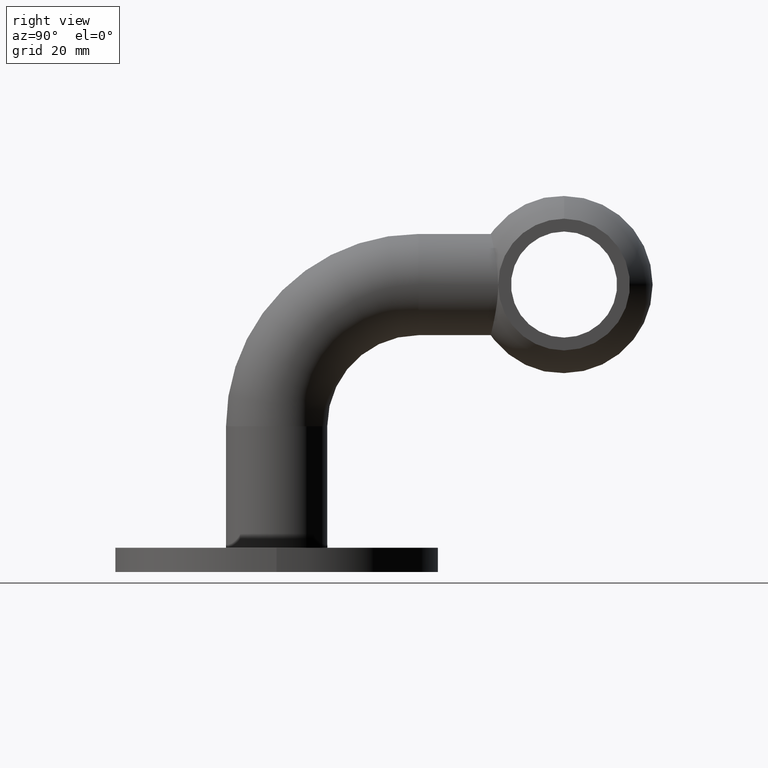
[diagram: clean part render]
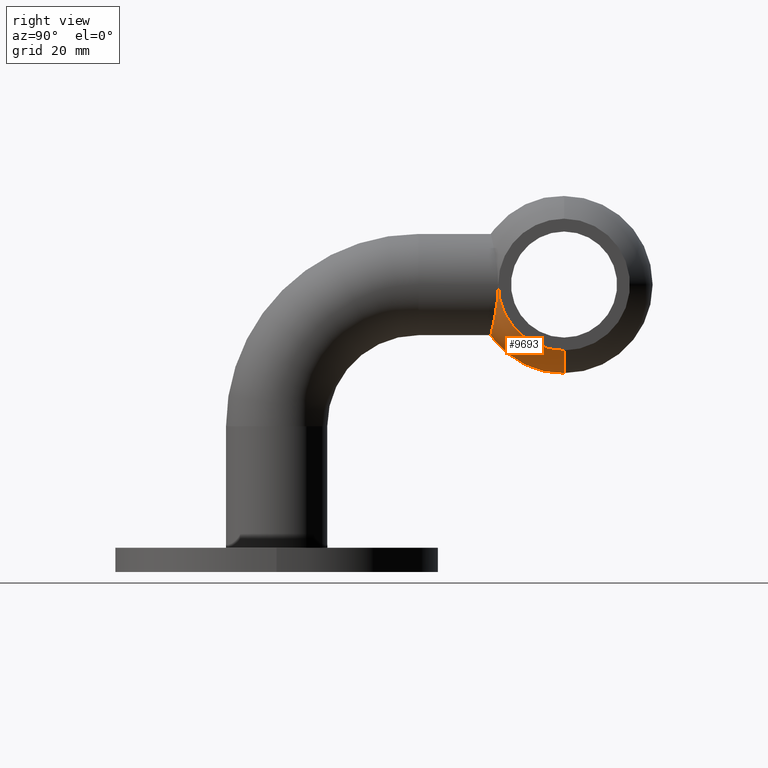
[diagram: same view with one face highlighted and labeled with its STEP entity id]
A machine part, right view. The second image highlights one B-rep face of the part: STEP entity #9693.
In plain terms, the highlighted toroidal blend (fillet) surface has major radius 5.5 mm and minor (blend) radius 16.5 mm.
Its self-contained STEP definition (entity closure, byte-faithful):
#232 = DIRECTION ( 'NONE',  ( 0.000000000000000000, 0.000000000000000000, 1.000000000000000000 ) ) ;
#277 = AXIS2_PLACEMENT_3D ( 'NONE', #3950, #3861, #232 ) ;
#471 = EDGE_CURVE ( 'NONE', #6858, #7572, #4157, .T. ) ;
#578 = CARTESIAN_POINT ( 'NONE',  ( 9.132306516827833676, 53.75282220600819727, 62.45503077041996676 ) ) ;
#773 = CARTESIAN_POINT ( 'NONE',  ( -6.272823850066046703, 53.27492715338297558, 60.18010263229639634 ) ) ;
#850 = CARTESIAN_POINT ( 'NONE',  ( -0.8198136089920443625, 52.90075422292627394, 58.52006521851529186 ) ) ;
#885 = CARTESIAN_POINT ( 'NONE',  ( -11.85799668050822397, 54.49063701149067640, 66.96220706592794158 ) ) ;
#929 = CARTESIAN_POINT ( 'NONE',  ( -5.175135113800343412, 53.14929389127991755, 59.61422849854959338 ) ) ;
#1066 = CARTESIAN_POINT ( 'NONE',  ( -2.562505938250228088E-11, 52.89613300976834154, 58.49999999999999289 ) ) ;
#1301 = CARTESIAN_POINT ( 'NONE',  ( 12.50000000000000000, 71.00000000000000000, 54.72967038573099785 ) ) ;
#1484 = CARTESIAN_POINT ( 'NONE',  ( 11.70086668536602481, 54.43966515298910025, 66.58321859969710488 ) ) ;
#1526 = CARTESIAN_POINT ( 'NONE',  ( 12.49999999999999822, 54.72967038573099785, 70.99999999999998579 ) ) ;
#1536 = VERTEX_POINT ( 'NONE', #7106 ) ;
#1636 = EDGE_CURVE ( 'NONE', #1536, #6858, #4975, .T. ) ;
#1818 = CARTESIAN_POINT ( 'NONE',  ( -2.562505938250228088E-11, 52.89613300976834154, 58.49999999999999289 ) ) ;
#2405 = CARTESIAN_POINT ( 'NONE',  ( 7.643191624765393932, 53.46934670307432214, 61.07521221868570649 ) ) ;
#2810 = CARTESIAN_POINT ( 'NONE',  ( -3.259799331690090618, 52.98892172844226423, 58.90467289242958060 ) ) ;
#2919 = DIRECTION ( 'NONE',  ( 0.000000000000000000, 0.000000000000000000, 1.000000000000000000 ) ) ;
#3384 = CARTESIAN_POINT ( 'NONE',  ( 2.853027337650234863, 52.97020487117517007, 58.82290740456883782 ) ) ;
#3456 = ORIENTED_EDGE ( 'NONE', *, *, #8928, .F. ) ;
#3468 = CARTESIAN_POINT ( 'NONE',  ( -12.49999999999999645, 54.72967038573099785, 70.99999999999998579 ) ) ;
#3652 = CARTESIAN_POINT ( 'NONE',  ( -12.49999999999999645, 71.00000000000000000, 54.72967038573099785 ) ) ;
#3861 = DIRECTION ( 'NONE',  ( -1.000000000000000000, -0.000000000000000000, -0.000000000000000000 ) ) ;
#3950 = CARTESIAN_POINT ( 'NONE',  ( 12.50000000000000000, 71.00000000000000000, 71.00000000000000000 ) ) ;
#4157 = B_SPLINE_CURVE_WITH_KNOTS ( 'NONE', 3,
 ( #10996, #8996, #9042, #3384, #5268, #11033, #6351, #6234, #7153, #10904, #5420, #2405, #4349, #578, #10039, #8112, #9912, #11933, #9999, #1484, #7193, #4301, #8954, #8078, #11806, #4393, #11977, #1526 ),
 .UNSPECIFIED., .F., .F.,
 ( 4, 2, 2, 2, 2, 2, 2, 2, 2, 2, 2, 2, 2, 4 ),
 ( 0.009902280643632964049, 0.01235852519796515336, 0.01358664747513124542, 0.01481476975229734094, 0.01604289202946343473, 0.01727101430662952852, 0.01972725886096171610, 0.02095538113812781683, 0.02218350341529391756, 0.02463974796962612249, 0.02586787024679221975, 0.02709599252395832741, 0.02832411480112442814, 0.02955223707829052887 ),
 .UNSPECIFIED. ) ;
#4194 = CARTESIAN_POINT ( 'NONE',  ( 0.000000000000000000, 71.00000000000000000, 71.00000000000000000 ) ) ;
#4301 = CARTESIAN_POINT ( 'NONE',  ( 12.07836274273245003, 54.57079314403573989, 67.75494346813994184 ) ) ;
#4349 = CARTESIAN_POINT ( 'NONE',  ( 8.269846387176160718, 53.57876506330701716, 61.59140145720031967 ) ) ;
#4393 = CARTESIAN_POINT ( 'NONE',  ( 12.47922104983943647, 54.72146868347901005, 70.17083671853319515 ) ) ;
#4444 = DIRECTION ( 'NONE',  ( 0.000000000000000000, 0.000000000000000000, 1.000000000000000000 ) ) ;
#4542 = CARTESIAN_POINT ( 'NONE',  ( -12.33801033815103843, 54.66693653104585593, 68.95235390157451150 ) ) ;
#4582 = CARTESIAN_POINT ( 'NONE',  ( -12.39930479514298867, 54.69051550591848354, 69.36405875897507656 ) ) ;
#4587 = TOROIDAL_SURFACE ( 'NONE', #6420, 5.499999999999991118, 16.49999999999999645 ) ;
#4775 = EDGE_CURVE ( 'NONE', #5874, #7572, #6532, .T. ) ;
#4975 = B_SPLINE_CURVE_WITH_KNOTS ( 'NONE', 3,
 ( #3468, #10991, #7265, #4582, #4542, #11197, #885, #5538, #7428, #9366, #5583, #12166, #11239, #12124, #12048, #8376, #773, #5664, #929, #6515, #2810, #11114, #5621, #850, #7468, #1818 ),
 .UNSPECIFIED., .F., .F.,
 ( 4, 2, 2, 2, 2, 2, 2, 2, 2, 2, 2, 2, 4 ),
 ( 0.06884475571312397013, 0.07007194714339678998, 0.07129913857366960983, 0.07375352143421527729, 0.07498071286448811101, 0.07620790429476094474, 0.07866228715530662607, 0.08111667001585227965, 0.08234386144612511338, 0.08357105287639793323, 0.08602543573694358681, 0.08725262716721640666, 0.08847981859748922651 ),
 .UNSPECIFIED. ) ;
#5268 = CARTESIAN_POINT ( 'NONE',  ( 3.254350300859888190, 52.99332333870499667, 58.92410495789010128 ) ) ;
#5420 = CARTESIAN_POINT ( 'NONE',  ( 6.623713723922134200, 53.32128470196217762, 60.39133070631485367 ) ) ;
#5434 = DIRECTION ( 'NONE',  ( -1.000000000000000000, -0.000000000000000000, -0.000000000000000000 ) ) ;
#5538 = CARTESIAN_POINT ( 'NONE',  ( -11.38881607484107050, 54.33848695400619278, 65.83169924667802775 ) ) ;
#5580 = ORIENTED_EDGE ( 'NONE', *, *, #1636, .F. ) ;
#5583 = CARTESIAN_POINT ( 'NONE',  ( -10.61600399440616371, 54.11110129428303139, 64.38824390141286358 ) ) ;
#5621 = CARTESIAN_POINT ( 'NONE',  ( -1.642513909929079974, 52.91947020872067498, 58.60149143810878059 ) ) ;
#5664 = CARTESIAN_POINT ( 'NONE',  ( -5.549449611817626860, 53.18900586991355794, 59.79187316687153952 ) ) ;
#5709 = CARTESIAN_POINT ( 'NONE',  ( -12.49999999999999645, 71.00000000000000000, 71.00000000000000000 ) ) ;
#5746 = DIRECTION ( 'NONE',  ( -1.000000000000000000, -0.000000000000000000, -0.000000000000000000 ) ) ;
#5761 = DIRECTION ( 'NONE',  ( -0.000000000000000000, 1.000000000000000000, 1.224646799147353207E-16 ) ) ;
#5874 = VERTEX_POINT ( 'NONE', #1301 ) ;
#6122 = VERTEX_POINT ( 'NONE', #3652 ) ;
#6234 = CARTESIAN_POINT ( 'NONE',  ( 5.176523293751863264, 53.14944729575198323, 59.61491603277579543 ) ) ;
#6351 = CARTESIAN_POINT ( 'NONE',  ( 4.422925868351437195, 53.07899008276994834, 59.30152757345776138 ) ) ;
#6363 = EDGE_LOOP ( 'NONE', ( #10093, #11825, #9054, #5580, #3456 ) ) ;
#6420 = AXIS2_PLACEMENT_3D ( 'NONE', #4194, #5434, #4444 ) ;
#6515 = CARTESIAN_POINT ( 'NONE',  ( -4.040265804369568947, 53.04326097742506363, 59.14261762666993150 ) ) ;
#6532 = CIRCLE ( 'NONE', #277, 16.27032961426899504 ) ;
#6692 = DIRECTION ( 'NONE',  ( 0.000000000000000000, 0.000000000000000000, 1.000000000000000000 ) ) ;
#6753 = CARTESIAN_POINT ( 'NONE',  ( 12.49999999999999822, 54.72967038573099785, 70.99999999999998579 ) ) ;
#6796 = CARTESIAN_POINT ( 'NONE',  ( 0.000000000000000000, 71.00000000000000000, 65.50000000000000000 ) ) ;
#6858 = VERTEX_POINT ( 'NONE', #1066 ) ;
#7106 = CARTESIAN_POINT ( 'NONE',  ( -12.49999999999999645, 54.72967038573099785, 70.99999999999998579 ) ) ;
#7153 = CARTESIAN_POINT ( 'NONE',  ( 5.545732223971645780, 53.18859801727796821, 59.79004328792095180 ) ) ;
#7193 = CARTESIAN_POINT ( 'NONE',  ( 11.84043235045426989, 54.48720737135788283, 66.97242005736561055 ) ) ;
#7265 = CARTESIAN_POINT ( 'NONE',  ( -12.48001002403662341, 54.72177780747093578, 70.18243474456929221 ) ) ;
#7428 = CARTESIAN_POINT ( 'NONE',  ( -11.21263325434209435, 54.28362993090607347, 65.45971802084318369 ) ) ;
#7468 = CARTESIAN_POINT ( 'NONE',  ( -0.4094347639409748330, 52.89613300976853338, 58.50000000000082423 ) ) ;
#7541 = CIRCLE ( 'NONE', #9302, 16.27032961426899504 ) ;
#7572 = VERTEX_POINT ( 'NONE', #6753 ) ;
#7670 = CIRCLE ( 'NONE', #9070, 16.50000000000000000 ) ;
#8078 = CARTESIAN_POINT ( 'NONE',  ( 12.33748221547064894, 54.66674122469106578, 68.94994612248621024 ) ) ;
#8112 = CARTESIAN_POINT ( 'NONE',  ( 9.927208003284118121, 53.93332075724253372, 63.39287305468807432 ) ) ;
#8376 = CARTESIAN_POINT ( 'NONE',  ( -6.622244840585345571, 53.32110511040809087, 60.39052268386603117 ) ) ;
#8928 = EDGE_CURVE ( 'NONE', #6122, #1536, #7541, .T. ) ;
#8954 = CARTESIAN_POINT ( 'NONE',  ( 12.17769109398907723, 54.60713754685681209, 68.15043372824162304 ) ) ;
#8996 = CARTESIAN_POINT ( 'NONE',  ( 0.8194906551509600900, 52.89613300976795074, 58.49999999999828759 ) ) ;
#9042 = CARTESIAN_POINT ( 'NONE',  ( 1.635226384129778276, 52.91455068988845767, 58.57979746779540875 ) ) ;
#9054 = ORIENTED_EDGE ( 'NONE', *, *, #471, .F. ) ;
#9070 = AXIS2_PLACEMENT_3D ( 'NONE', #6796, #5761, #2919 ) ;
#9302 = AXIS2_PLACEMENT_3D ( 'NONE', #5709, #5746, #6692 ) ;
#9366 = CARTESIAN_POINT ( 'NONE',  ( -10.82576346949956658, 54.16980967202465536, 64.73735565376759382 ) ) ;
#9693 = ADVANCED_FACE ( 'NONE', ( #11339 ), #4587, .T. ) ;
#9912 = CARTESIAN_POINT ( 'NONE',  ( 10.16941495769660975, 53.99357574630427337, 63.72005873825759181 ) ) ;
#9999 = CARTESIAN_POINT ( 'NONE',  ( 11.22878784594823642, 54.28662453797252141, 65.44686754905269765 ) ) ;
#10039 = CARTESIAN_POINT ( 'NONE',  ( 9.407798791466506216, 53.81272415127065756, 62.75917716475835562 ) ) ;
#10093 = ORIENTED_EDGE ( 'NONE', *, *, #10152, .F. ) ;
#10152 = EDGE_CURVE ( 'NONE', #5874, #6122, #7670, .T. ) ;
#10904 = CARTESIAN_POINT ( 'NONE',  ( 6.268765138760210576, 53.27441173332379520, 60.17776090535104316 ) ) ;
#10991 = CARTESIAN_POINT ( 'NONE',  ( -12.49999999999999822, 54.72967038573100496, 70.59135127237787799 ) ) ;
#10996 = CARTESIAN_POINT ( 'NONE',  ( -2.562505938250228088E-11, 52.89613300976834154, 58.49999999999999289 ) ) ;
#11033 = CARTESIAN_POINT ( 'NONE',  ( 4.038537398388217348, 53.04768134384767109, 59.16326680918334091 ) ) ;
#11114 = CARTESIAN_POINT ( 'NONE',  ( -2.053016756152780786, 52.93358133212495886, 58.66292459375157620 ) ) ;
#11197 = CARTESIAN_POINT ( 'NONE',  ( -12.09591627729457208, 54.57663811271784482, 67.74174525128012192 ) ) ;
#11239 = CARTESIAN_POINT ( 'NONE',  ( -9.422619699859657416, 53.81137046380562339, 62.74546569001280005 ) ) ;
#11339 = FACE_OUTER_BOUND ( 'NONE', #6363, .T. ) ;
#11806 = CARTESIAN_POINT ( 'NONE',  ( 12.39794542763237217, 54.68999253350047240, 69.35396873312259913 ) ) ;
#11825 = ORIENTED_EDGE ( 'NONE', *, *, #4775, .T. ) ;
#11933 = CARTESIAN_POINT ( 'NONE',  ( 10.84530706663929500, 54.17151441597062700, 64.73202616029099943 ) ) ;
#11977 = CARTESIAN_POINT ( 'NONE',  ( 12.50000000000000000, 54.72967038573080600, 70.58604571683584084 ) ) ;
#12048 = CARTESIAN_POINT ( 'NONE',  ( -7.634904761393205952, 53.46807625555469912, 61.06930154091177343 ) ) ;
#12124 = CARTESIAN_POINT ( 'NONE',  ( -8.262876143500013981, 53.57739972674917794, 61.58469456044482371 ) ) ;
#12166 = CARTESIAN_POINT ( 'NONE',  ( -9.938820156633239478, 53.93296093041067252, 63.37574318638802851 ) ) ;